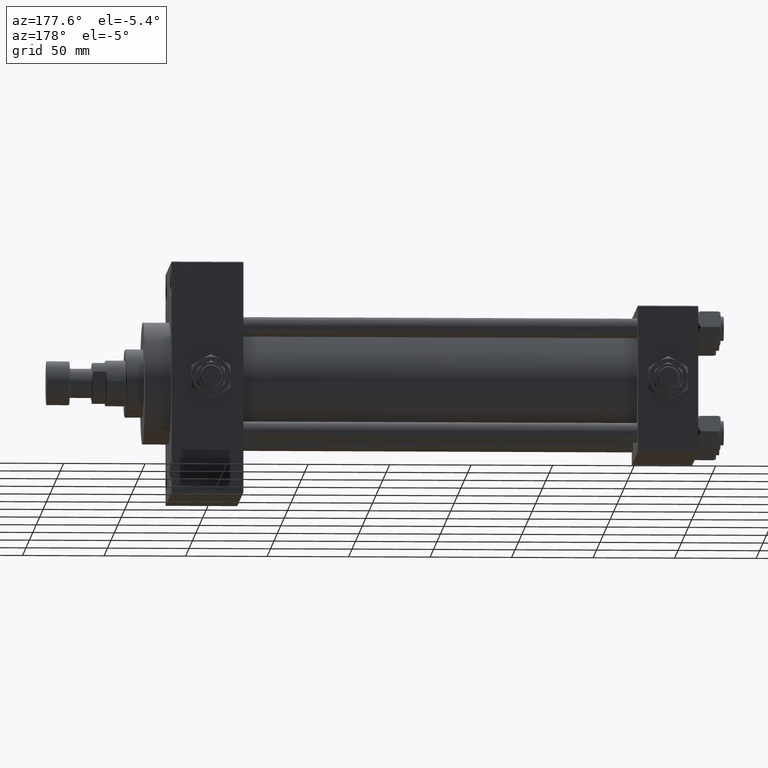
[diagram: clean part render]
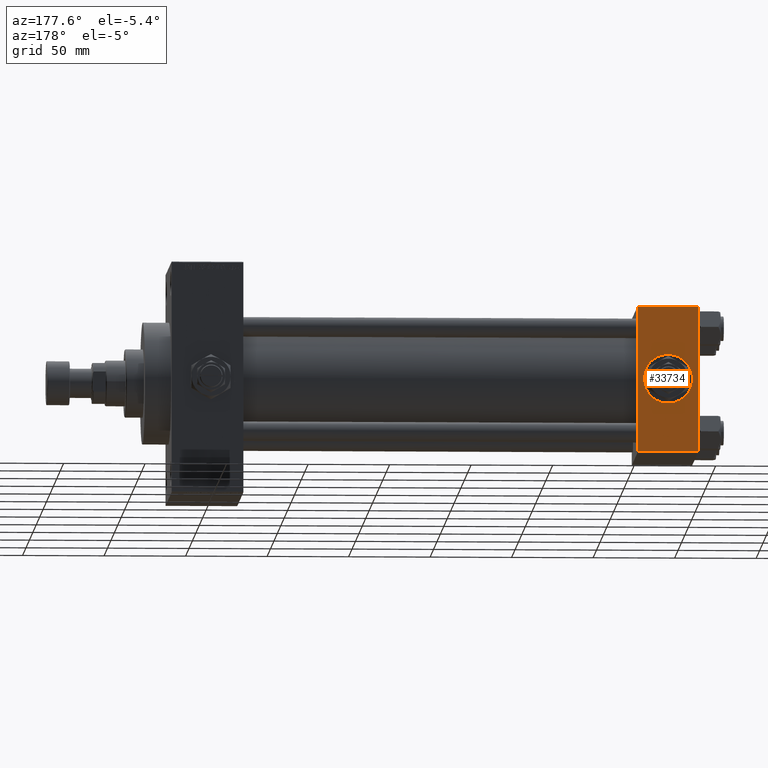
[diagram: same view with one face highlighted and labeled with its STEP entity id]
A machine part, auxiliary view. The second image highlights one B-rep face of the part: STEP entity #33734.
In plain terms, the highlighted planar face has unit normal (0, 1, 0).
Its self-contained STEP definition (entity closure, byte-faithful):
#297 = EDGE_CURVE ( 'NONE', #36681, #31139, #18743, .T. ) ;
#535 = EDGE_CURVE ( 'NONE', #20727, #32469, #46390, .T. ) ;
#3693 = EDGE_CURVE ( 'NONE', #45504, #20727, #9382, .T. ) ;
#5204 = FACE_BOUND ( 'NONE', #31917, .T. ) ;
#5391 = EDGE_CURVE ( 'NONE', #45504, #49222, #31015, .T. ) ;
#5743 = CARTESIAN_POINT ( 'NONE',  ( 37.00000000000000000, 44.99999999999998579, -44.49999999999995737 ) ) ;
#7864 = DIRECTION ( 'NONE',  ( 0.000000000000000000, 0.000000000000000000, -1.000000000000000000 ) ) ;
#9382 = LINE ( 'NONE', #24752, #40287 ) ;
#10054 = ORIENTED_EDGE ( 'NONE', *, *, #12564, .T. ) ;
#10244 = CARTESIAN_POINT ( 'NONE',  ( 37.00000000000000000, 44.99999999999998579, 44.50000000000001421 ) ) ;
#11090 = DIRECTION ( 'NONE',  ( 0.000000000000000000, 1.000000000000000000, 0.000000000000000000 ) ) ;
#12089 = CARTESIAN_POINT ( 'NONE',  ( 18.50000000000000000, 44.99999999999998579, 0.000000000000000000 ) ) ;
#12378 = VECTOR ( 'NONE', #23657, 1000.000000000000000 ) ;
#12564 = EDGE_CURVE ( 'NONE', #32469, #49222, #16586, .T. ) ;
#14695 = DIRECTION ( 'NONE',  ( 0.000000000000000000, 1.000000000000000000, 0.000000000000000000 ) ) ;
#16586 = LINE ( 'NONE', #20112, #12378 ) ;
#16677 = CARTESIAN_POINT ( 'NONE',  ( 0.000000000000000000, 44.99999999999998579, 44.50000000000001421 ) ) ;
#18743 = CIRCLE ( 'NONE', #33336, 15.00000000000000178 ) ;
#18864 = ORIENTED_EDGE ( 'NONE', *, *, #38055, .F. ) ;
#20112 = CARTESIAN_POINT ( 'NONE',  ( 37.00000000000000000, 44.99999999999998579, -44.49999999999998579 ) ) ;
#20307 = FACE_OUTER_BOUND ( 'NONE', #25934, .T. ) ;
#20727 = VERTEX_POINT ( 'NONE', #10244 ) ;
#23606 = CARTESIAN_POINT ( 'NONE',  ( 37.00000000000000000, 44.99999999999998579, 45.00000000000001421 ) ) ;
#23657 = DIRECTION ( 'NONE',  ( -1.000000000000000000, 0.000000000000000000, 0.000000000000000000 ) ) ;
#24752 = CARTESIAN_POINT ( 'NONE',  ( 37.00000000000000000, 44.99999999999998579, 44.50000000000001421 ) ) ;
#25776 = VECTOR ( 'NONE', #7864, 1000.000000000000000 ) ;
#25934 = EDGE_LOOP ( 'NONE', ( #30545, #10054, #48065, #42524 ) ) ;
#27292 = ORIENTED_EDGE ( 'NONE', *, *, #297, .F. ) ;
#27599 = CIRCLE ( 'NONE', #32397, 15.00000000000000178 ) ;
#28352 = DIRECTION ( 'NONE',  ( 0.000000000000000000, -0.000000000000000000, 1.000000000000000000 ) ) ;
#29779 = DIRECTION ( 'NONE',  ( 0.000000000000000000, 0.000000000000000000, 1.000000000000000000 ) ) ;
#30545 = ORIENTED_EDGE ( 'NONE', *, *, #535, .T. ) ;
#30943 = VECTOR ( 'NONE', #42600, 1000.000000000000000 ) ;
#31015 = LINE ( 'NONE', #38562, #25776 ) ;
#31139 = VERTEX_POINT ( 'NONE', #47559 ) ;
#31917 = EDGE_LOOP ( 'NONE', ( #18864, #27292 ) ) ;
#32397 = AXIS2_PLACEMENT_3D ( 'NONE', #12089, #11090, #49601 ) ;
#32469 = VERTEX_POINT ( 'NONE', #5743 ) ;
#33059 = CARTESIAN_POINT ( 'NONE',  ( 18.50000000000000000, 44.99999999999998579, 0.000000000000000000 ) ) ;
#33336 = AXIS2_PLACEMENT_3D ( 'NONE', #33059, #14695, #29779 ) ;
#33734 = ADVANCED_FACE ( 'NONE', ( #5204, #20307 ), #43697, .T. ) ;
#34778 = AXIS2_PLACEMENT_3D ( 'NONE', #23606, #46988, #28352 ) ;
#36627 = CARTESIAN_POINT ( 'NONE',  ( 0.000000000000000000, 44.99999999999998579, -44.49999999999995737 ) ) ;
#36681 = VERTEX_POINT ( 'NONE', #38240 ) ;
#38055 = EDGE_CURVE ( 'NONE', #31139, #36681, #27599, .T. ) ;
#38240 = CARTESIAN_POINT ( 'NONE',  ( 18.50000000000000355, 44.99999999999998579, -15.00000000000000178 ) ) ;
#38562 = CARTESIAN_POINT ( 'NONE',  ( 0.000000000000000000, 44.99999999999998579, 45.00000000000001421 ) ) ;
#40091 = DIRECTION ( 'NONE',  ( 1.000000000000000000, 0.000000000000000000, 0.000000000000000000 ) ) ;
#40287 = VECTOR ( 'NONE', #40091, 1000.000000000000000 ) ;
#42524 = ORIENTED_EDGE ( 'NONE', *, *, #3693, .T. ) ;
#42600 = DIRECTION ( 'NONE',  ( 0.000000000000000000, 0.000000000000000000, -1.000000000000000000 ) ) ;
#43697 = PLANE ( 'NONE',  #34778 ) ;
#45504 = VERTEX_POINT ( 'NONE', #16677 ) ;
#45881 = CARTESIAN_POINT ( 'NONE',  ( 37.00000000000000000, 44.99999999999998579, 45.00000000000001421 ) ) ;
#46390 = LINE ( 'NONE', #45881, #30943 ) ;
#46988 = DIRECTION ( 'NONE',  ( -0.000000000000000000, 1.000000000000000000, 0.000000000000000000 ) ) ;
#47559 = CARTESIAN_POINT ( 'NONE',  ( 18.50000000000000000, 44.99999999999998579, 15.00000000000000178 ) ) ;
#48065 = ORIENTED_EDGE ( 'NONE', *, *, #5391, .F. ) ;
#49222 = VERTEX_POINT ( 'NONE', #36627 ) ;
#49601 = DIRECTION ( 'NONE',  ( 0.000000000000000000, 0.000000000000000000, 1.000000000000000000 ) ) ;